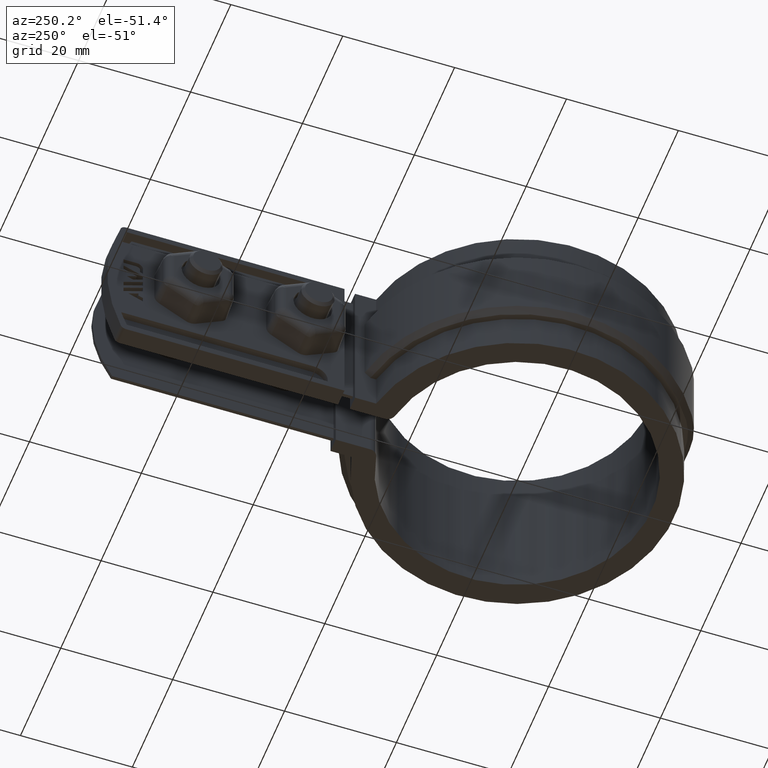
[diagram: clean part render]
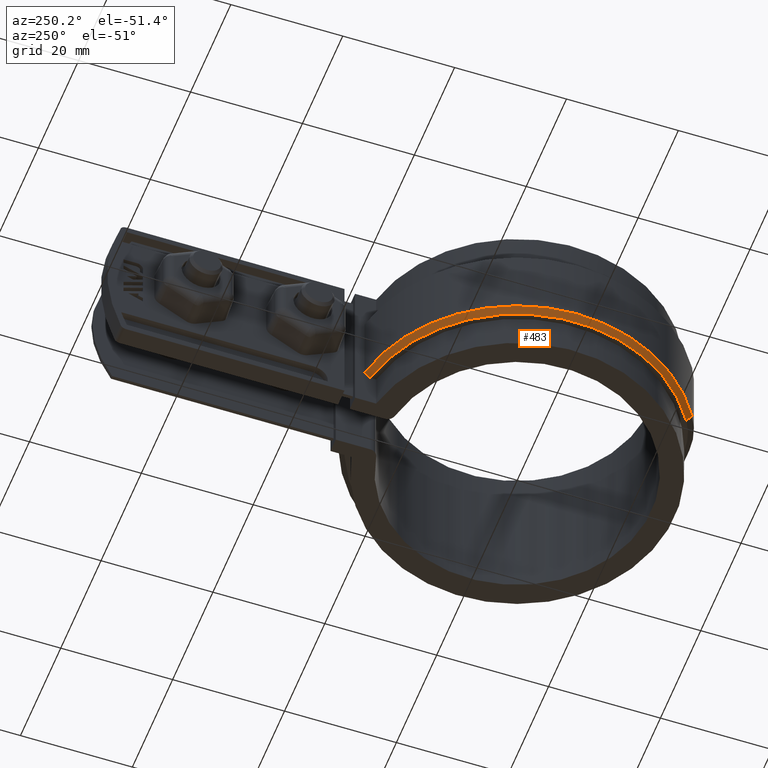
[diagram: same view with one face highlighted and labeled with its STEP entity id]
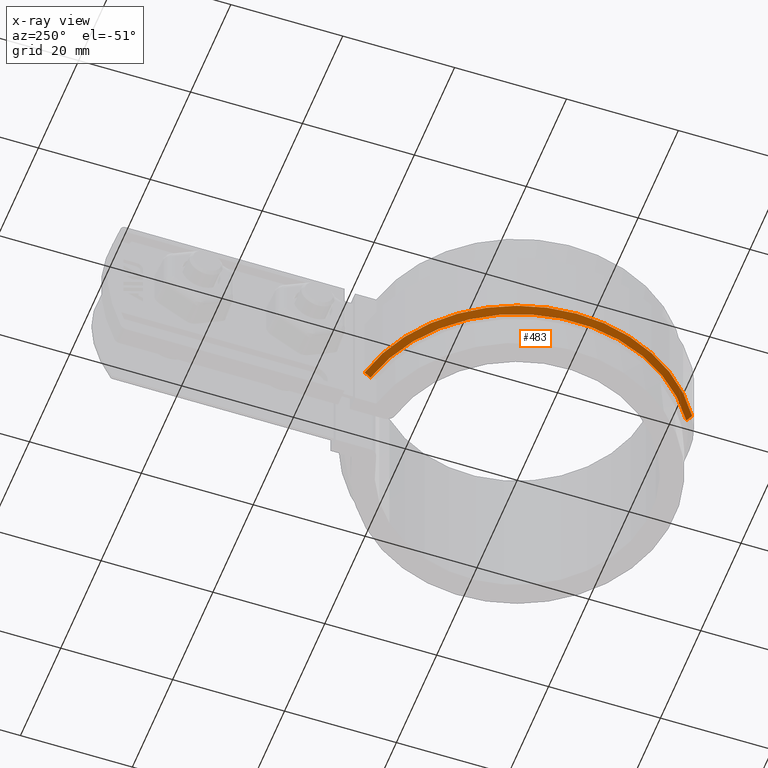
[diagram: x-ray of the same camera — body ghosted, the highlighted face saturated]
A machine part, auxiliary view. The second image highlights one B-rep face of the part: STEP entity #483.
The next image is the same camera in x-ray: the body ghosted, the highlighted face saturated — about 0% of this face is hidden behind the body in this view.
In plain terms, the highlighted conical surface has half-angle 45 deg.
Its self-contained STEP definition (entity closure, byte-faithful):
#483 = ADVANCED_FACE( '', ( #978 ), #979, .T. );
#978 = FACE_OUTER_BOUND( '', #2296, .T. );
#979 = CONICAL_SURFACE( '', #2297, 30.0950000000000, 0.785398163397448 );
#2296 = EDGE_LOOP( '', ( #4973, #4974, #4975, #4976 ) );
#2297 = AXIS2_PLACEMENT_3D( '', #4977, #4978, #4979 );
#4973 = ORIENTED_EDGE( '', *, *, #7484, .F. );
#4974 = ORIENTED_EDGE( '', *, *, #7511, .F. );
#4975 = ORIENTED_EDGE( '', *, *, #7530, .F. );
#4976 = ORIENTED_EDGE( '', *, *, #7505, .F. );
#4977 = CARTESIAN_POINT( '', ( 8.67361737988404E-016, 0.000000000000000, -19.0000000000000 ) );
#4978 = DIRECTION( '', ( 0.000000000000000, 0.000000000000000, 1.00000000000000 ) );
#4979 = DIRECTION( '', ( 1.00000000000000, 0.000000000000000, 0.000000000000000 ) );
#7484 = EDGE_CURVE( '', #8701, #8703, #8704, .T. );
#7505 = EDGE_CURVE( '', #8703, #8739, #8740, .F. );
#7511 = EDGE_CURVE( '', #8746, #8701, #8748, .T. );
#7530 = EDGE_CURVE( '', #8739, #8746, #8774, .T. );
#8701 = VERTEX_POINT( '', #12153 );
#8703 = VERTEX_POINT( '', #12156 );
#8704 = B_SPLINE_CURVE_WITH_KNOTS( '', 3, ( #12157, #12158, #12159, #12160 ), .UNSPECIFIED., .F., .F., ( 4, 4 ), ( 0.000000000000000, 0.00142981905526117 ), .UNSPECIFIED. );
#8739 = VERTEX_POINT( '', #12218 );
#8740 = CIRCLE( '', #12219, 30.0950000000000 );
#8746 = VERTEX_POINT( '', #12226 );
#8748 = CIRCLE( '', #12228, 29.0950000000000 );
#8774 = LINE( '', #12262, #12263 );
#12153 = CARTESIAN_POINT( '', ( -6.10000000000000, 28.4483571581910, -20.0000000000000 ) );
#12156 = CARTESIAN_POINT( '', ( -6.09999999999999, 29.4703075145137, -19.0000000000000 ) );
#12157 = CARTESIAN_POINT( '', ( -6.10000000000000, 28.4483571581910, -20.0000000000000 ) );
#12158 = CARTESIAN_POINT( '', ( -6.10000000000000, 28.7891343892327, -19.6667966186612 ) );
#12159 = CARTESIAN_POINT( '', ( -6.10000000000000, 29.1297802412302, -19.3334588290661 ) );
#12160 = CARTESIAN_POINT( '', ( -6.10000000000000, 29.4703075145137, -19.0000000000000 ) );
#12218 = CARTESIAN_POINT( '', ( -15.9728671526465, -25.5064019399818, -19.0000000000000 ) );
#12219 = AXIS2_PLACEMENT_3D( '', #14131, #14132, #14133 );
#12226 = CARTESIAN_POINT( '', ( -15.4421189501993, -24.6588723855714, -20.0000000000000 ) );
#12228 = AXIS2_PLACEMENT_3D( '', #14147, #14148, #14149 );
#12262 = CARTESIAN_POINT( '', ( -15.9728671526465, -25.5064019399818, -19.0000000000000 ) );
#12263 = VECTOR( '', #14188, 1000.00000000000 );
#14131 = CARTESIAN_POINT( '', ( 8.67361737988404E-016, 0.000000000000000, -19.0000000000000 ) );
#14132 = DIRECTION( '', ( 0.000000000000000, 0.000000000000000, -1.00000000000000 ) );
#14133 = DIRECTION( '', ( -1.00000000000000, 0.000000000000000, 0.000000000000000 ) );
#14147 = CARTESIAN_POINT( '', ( 8.67361737988404E-016, 0.000000000000000, -20.0000000000000 ) );
#14148 = DIRECTION( '', ( 0.000000000000000, 0.000000000000000, -1.00000000000000 ) );
#14149 = DIRECTION( '', ( -1.00000000000000, 0.000000000000000, 0.000000000000000 ) );
#14188 = DIRECTION( '', ( 0.375295653052938, 0.599293895179626, -0.707106781186548 ) );